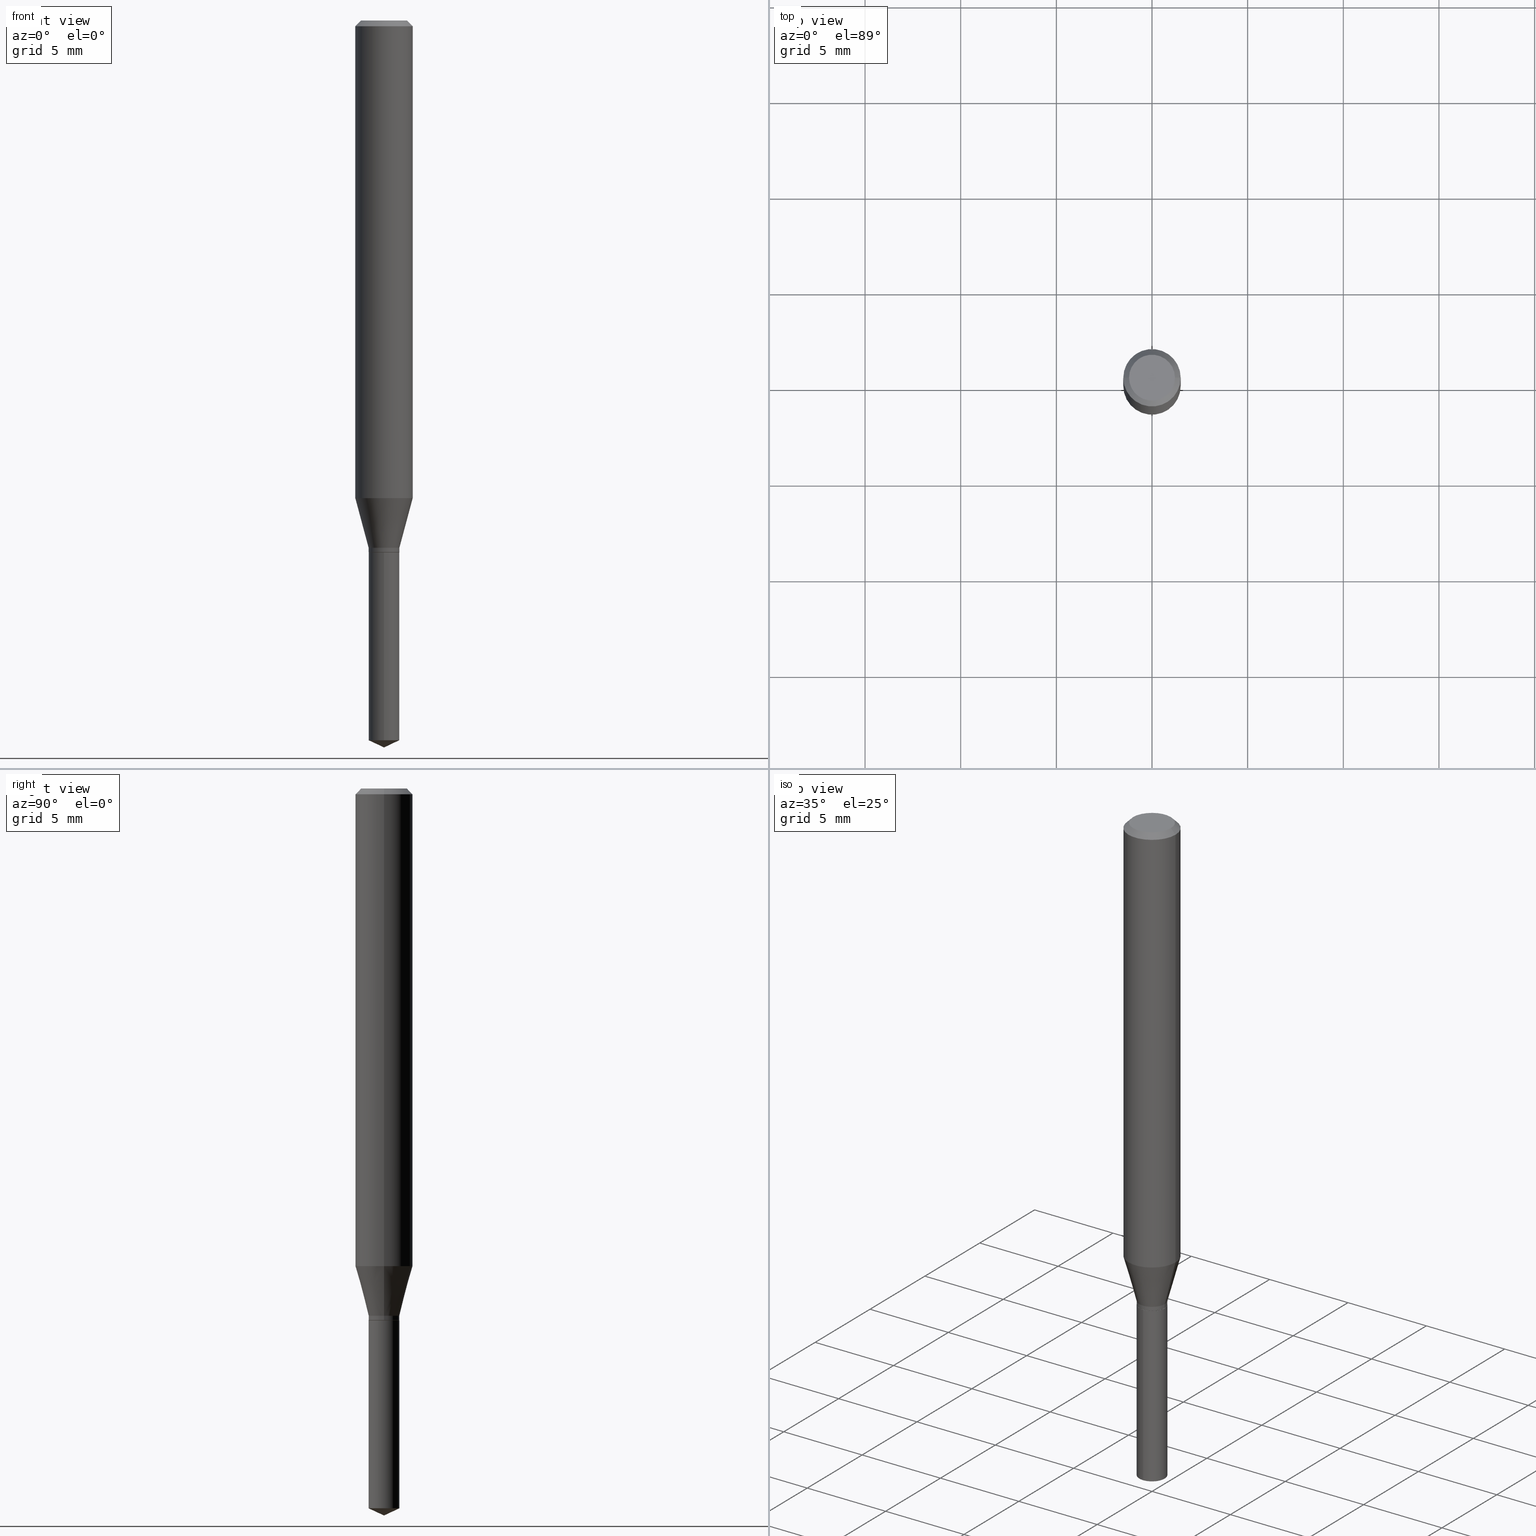
[diagram: canonical four-view strip — front | top / right | iso, engineering-drawing reading convention]
A machine part, canonical four-view strip (front | top / right | iso — engineering-drawing reading convention). The complete STEP part file that produces these views, byte-faithful:
ISO-10303-21;
HEADER;
FILE_DESCRIPTION (( 'STEP AP203' ),
    '1' );
FILE_NAME ('07554.STEP',
    '2024-04-23T22:52:33',
    ( '' ),
    ( '' ),
    'SwSTEP 2.0',
    'SolidWorks 2023',
    '' );
FILE_SCHEMA (( 'CONFIG_CONTROL_DESIGN' ));
ENDSEC;

DATA;
#1 = DIRECTION ( 'NONE',  ( -2.445468806185136597E-29, 3.491481338843145583E-15, 1.000000000000000000 ) ) ;
#2 = COORDINATED_UNIVERSAL_TIME_OFFSET ( 5, 0, .BEHIND. ) ;
#3 = CARTESIAN_POINT ( 'NONE',  ( -0.03119999999999999857, -3.597087764632560275E-15, -1.094500000000000028 ) ) ;
#4 = CARTESIAN_POINT ( 'NONE',  ( -0.05904999999999999832, -1.316979813027385650E-15, -0.01181000000000007218 ) ) ;
#5 = AXIS2_PLACEMENT_3D ( 'NONE', #169, #325, #94 ) ;
#6 = CC_DESIGN_DATE_AND_TIME_ASSIGNMENT ( #307, #345, ( #447 ) ) ;
#7 =( GEOMETRIC_REPRESENTATION_CONTEXT ( 3 ) GLOBAL_UNCERTAINTY_ASSIGNED_CONTEXT ( ( #240 ) ) GLOBAL_UNIT_ASSIGNED_CONTEXT ( ( #287, #341, #137 ) ) REPRESENTATION_CONTEXT ( 'NONE', 'WORKASPACE' ) );
#8 = SECURITY_CLASSIFICATION_LEVEL ( 'unclassified' ) ;
#9 = CARTESIAN_POINT ( 'NONE',  ( 2.676565608369632355E-29, -3.821426325363822773E-15, -1.094500000000000028 ) ) ;
#10 = DIRECTION ( 'NONE',  ( 1.000000000000000000, -6.982962677686266711E-15, 4.876185090822587894E-29 ) ) ;
#11 = ADVANCED_BREP_SHAPE_REPRESENTATION ( '07554', ( #474, #482, #246 ), #7 ) ;
#12 = EDGE_CURVE ( 'NONE', #23, #438, #337, .T. ) ;
#13 = ADVANCED_FACE ( 'NONE', ( #485 ), #237, .T. ) ;
#14 = FACE_OUTER_BOUND ( 'NONE', #111, .T. ) ;
#15 = ORIENTED_EDGE ( 'NONE', *, *, #268, .T. ) ;
#16 = FACE_OUTER_BOUND ( 'NONE', #479, .T. ) ;
#17 = DIRECTION ( 'NONE',  ( -2.445468806185136877E-29, 3.491481338843145188E-15, 1.000000000000000000 ) ) ;
#18 = ORIENTED_EDGE ( 'NONE', *, *, #65, .T. ) ;
#19 = EDGE_CURVE ( 'NONE', #312, #177, #260, .T. ) ;
#20 = EDGE_CURVE ( 'NONE', #132, #177, #216, .T. ) ;
#21 = LINE ( 'NONE', #163, #465 ) ;
#22 = ORIENTED_EDGE ( 'NONE', *, *, #20, .T. ) ;
#23 = VERTEX_POINT ( 'NONE', #3 ) ;
#24 = AXIS2_PLACEMENT_3D ( 'NONE', #87, #45, #53 ) ;
#25 = CARTESIAN_POINT ( 'NONE',  ( 0.03119999999999999857, -4.039294760907634307E-15, -1.094500000000000028 ) ) ;
#26 = ORIENTED_EDGE ( 'NONE', *, *, #378, .F. ) ;
#27 = ADVANCED_FACE ( 'NONE', ( #455 ), #223, .F. ) ;
#28 = DIRECTION ( 'NONE',  ( -2.445468806185136597E-29, 3.491481338843145583E-15, 1.000000000000000000 ) ) ;
#29 = ORIENTED_EDGE ( 'NONE', *, *, #362, .F. ) ;
#30 = DIRECTION ( 'NONE',  ( -6.982962677686265922E-15, -1.000000000000000000, 4.308908507356882401E-15 ) ) ;
#31 = ORIENTED_EDGE ( 'NONE', *, *, #462, .F. ) ;
#32 = APPROVAL_PERSON_ORGANIZATION ( #411, #352, #73 ) ;
#33 = CONICAL_SURFACE ( 'NONE', #173, 84.42940631927372408, 1.134464013796313120 ) ;
#34 = CONICAL_SURFACE ( 'NONE', #205, 0.03169999999999998513, 0.2617993877991499074 ) ;
#35 = ORIENTED_EDGE ( 'NONE', *, *, #458, .F. ) ;
#36 = DIRECTION ( 'NONE',  ( 0.000000000000000000, 0.000000000000000000, 1.000000000000000000 ) ) ;
#37 = ORIENTED_EDGE ( 'NONE', *, *, #362, .T. ) ;
#38 = CARTESIAN_POINT ( 'NONE',  ( 3.658664905062460986E-29, -5.223606628546217219E-15, -1.496099999999999985 ) ) ;
#39 = ORIENTED_EDGE ( 'NONE', *, *, #378, .T. ) ;
#40 = CALENDAR_DATE ( 2024, 23, 4 ) ;
#41 = VECTOR ( 'NONE', #89, 39.37007874015748143 ) ;
#42 = ORIENTED_EDGE ( 'NONE', *, *, #385, .F. ) ;
#43 = APPROVAL_STATUS ( 'not_yet_approved' ) ;
#44 = DIRECTION ( 'NONE',  ( 2.438088387897960049E-29, -3.491481338843145188E-15, -1.000000000000000000 ) ) ;
#45 = DIRECTION ( 'NONE',  ( -2.445468806185136597E-29, 3.491481338843145583E-15, 1.000000000000000000 ) ) ;
#46 = COORDINATED_UNIVERSAL_TIME_OFFSET ( 5, 0, .BEHIND. ) ;
#47 = LINE ( 'NONE', #117, #302 ) ;
#48 = CC_DESIGN_APPROVAL ( #99, ( #301 ) ) ;
#49 = AXIS2_PLACEMENT_3D ( 'NONE', #437, #97, #245 ) ;
#50 = DIRECTION ( 'NONE',  ( -6.982962677686266711E-15, -1.000000000000000000, 3.520397390770479508E-15 ) ) ;
#51 = ADVANCED_FACE ( 'NONE', ( #375 ), #448, .T. ) ;
#52 = DIRECTION ( 'NONE',  ( -6.982962677686265922E-15, -1.000000000000000000, 0.000000000000000000 ) ) ;
#53 = DIRECTION ( 'NONE',  ( 1.000000000000000000, -6.982962677686266711E-15, 0.000000000000000000 ) ) ;
#54 = CIRCLE ( 'NONE', #63, 0.03119999999999999857 ) ;
#55 = EDGE_CURVE ( 'NONE', #443, #231, #348, .T. ) ;
#56 = DIRECTION ( 'NONE',  ( -2.445468806185136597E-29, 3.491481338843145583E-15, 1.000000000000000000 ) ) ;
#57 = ORIENTED_EDGE ( 'NONE', *, *, #463, .T. ) ;
#58 = CARTESIAN_POINT ( 'NONE',  ( 2.675342873966538993E-29, -3.819680584694400481E-15, -1.093999999999999861 ) ) ;
#59 = ORIENTED_EDGE ( 'NONE', *, *, #377, .F. ) ;
#60 = CARTESIAN_POINT ( 'NONE',  ( 2.888098660104664204E-31, -4.123439461173780263E-17, -0.01181000000000007218 ) ) ;
#61 = ORIENTED_EDGE ( 'NONE', *, *, #268, .F. ) ;
#62 = AXIS2_PLACEMENT_3D ( 'NONE', #58, #391, #210 ) ;
#63 = AXIS2_PLACEMENT_3D ( 'NONE', #196, #383, #419 ) ;
#64 = CARTESIAN_POINT ( 'NONE',  ( -0.03169999999999998513, -3.578726871433655542E-15, -1.093999999999999861 ) ) ;
#65 = EDGE_CURVE ( 'NONE', #211, #23, #417, .T. ) ;
#66 = CARTESIAN_POINT ( 'NONE',  ( -2.213599168826184261E-16, -0.03170000000000517543, -1.481318047236486413 ) ) ;
#67 = LENGTH_MEASURE_WITH_UNIT ( LENGTH_MEASURE( 0.02539999999999999897 ), #452 );
#68 = ORIENTED_EDGE ( 'NONE', *, *, #306, .F. ) ;
#69 = CIRCLE ( 'NONE', #373, 0.05904999999999999832 ) ;
#70 = APPLICATION_PROTOCOL_DEFINITION ( 'international standard', 'config_control_design', 1994, #243 ) ;
#71 = LOCAL_TIME ( 18, 52, 33.00000000000000000, #379 ) ;
#72 = VERTEX_POINT ( 'NONE', #106 ) ;
#73 = APPROVAL_ROLE ( '' ) ;
#74 = DIRECTION ( 'NONE',  ( -2.445468806185136597E-29, 3.491481338843145583E-15, 1.000000000000000000 ) ) ;
#75 = DIRECTION ( 'NONE',  ( -2.445468806185136597E-29, 3.491481338843145583E-15, 1.000000000000000000 ) ) ;
#76 = ORIENTED_EDGE ( 'NONE', *, *, #20, .F. ) ;
#77 = PERSON_AND_ORGANIZATION_ROLE ( 'design_owner' ) ;
#78 = ORIENTED_EDGE ( 'NONE', *, *, #306, .T. ) ;
#79 = PERSON_AND_ORGANIZATION ( #332, #230 ) ;
#80 = DIRECTION ( 'NONE',  ( -2.445470214571802116E-29, 3.491479321953280158E-15, 1.000000000000000000 ) ) ;
#81 = CALENDAR_DATE ( 2024, 23, 4 ) ;
#82 = FACE_OUTER_BOUND ( 'NONE', #247, .T. ) ;
#83 = EDGE_CURVE ( 'NONE', #359, #179, #440, .T. ) ;
#84 = DIRECTION ( 'NONE',  ( -2.445470214571802116E-29, 3.491479321953280158E-15, 1.000000000000000000 ) ) ;
#85 = CARTESIAN_POINT ( 'NONE',  ( 3.622517621345287760E-29, -5.171993538648362577E-15, -1.481318047236486413 ) ) ;
#86 = ADVANCED_FACE ( 'NONE', ( #14 ), #471, .T. ) ;
#87 = CARTESIAN_POINT ( 'NONE',  ( 2.888098660104664204E-31, -4.123439461173780263E-17, -0.01181000000000007218 ) ) ;
#88 = ORIENTED_EDGE ( 'NONE', *, *, #477, .T. ) ;
#89 = DIRECTION ( 'NONE',  ( -2.445468806185136877E-29, 3.491481338843145188E-15, 1.000000000000000000 ) ) ;
#90 = APPROVAL_PERSON_ORGANIZATION ( #112, #99, #225 ) ;
#91 = LOCAL_TIME ( 18, 52, 33.00000000000000000, #459 ) ;
#92 = AXIS2_PLACEMENT_3D ( 'NONE', #424, #84, #229 ) ;
#93 = AXIS2_PLACEMENT_3D ( 'NONE', #358, #162, #315 ) ;
#94 = DIRECTION ( 'NONE',  ( 1.000000000000000000, -6.982962677686267499E-15, 0.000000000000000000 ) ) ;
#95 = ORIENTED_EDGE ( 'NONE', *, *, #232, .T. ) ;
#96 = LINE ( 'NONE', #25, #256 ) ;
#97 = DIRECTION ( 'NONE',  ( -2.445468806185136597E-29, 3.491481338843145583E-15, 1.000000000000000000 ) ) ;
#98 = ORIENTED_EDGE ( 'NONE', *, *, #451, .T. ) ;
#99 = APPROVAL ( #343, 'UNSPECIFIED' ) ;
#100 = DIRECTION ( 'NONE',  ( -2.445470214571802116E-29, 3.491479321953280158E-15, 1.000000000000000000 ) ) ;
#101 = ORIENTED_EDGE ( 'NONE', *, *, #351, .T. ) ;
#102 = LINE ( 'NONE', #139, #323 ) ;
#103 = DIRECTION ( 'NONE',  ( -2.445470214571802116E-29, 3.491479321953280158E-15, 1.000000000000000000 ) ) ;
#104 = CARTESIAN_POINT ( 'NONE',  ( 2.676565608369632355E-29, -3.821426325363822773E-15, -1.094500000000000028 ) ) ;
#105 = ORIENTED_EDGE ( 'NONE', *, *, #252, .F. ) ;
#106 = CARTESIAN_POINT ( 'NONE',  ( 0.03169999999999998513, -4.041040501577055811E-15, -1.093999999999999861 ) ) ;
#107 = DIRECTION ( 'NONE',  ( 0.2588190451025211836, 1.565188264969622559E-15, 0.9659258262890679791 ) ) ;
#108 = EDGE_CURVE ( 'NONE', #177, #333, #228, .T. ) ;
#109 = DIRECTION ( 'NONE',  ( 1.000000000000000000, -6.982962677686267499E-15, 0.000000000000000000 ) ) ;
#110 = CALENDAR_DATE ( 2024, 23, 4 ) ;
#111 = EDGE_LOOP ( 'NONE', ( #397, #95, #168, #262 ) ) ;
#112 = PERSON_AND_ORGANIZATION ( #332, #230 ) ;
#113 = CARTESIAN_POINT ( 'NONE',  ( -0.03169999999999998513, -3.578726871433655542E-15, -1.084999999999999964 ) ) ;
#114 = CIRCLE ( 'NONE', #92, 0.03169999999999999901 ) ;
#115 = EDGE_CURVE ( 'NONE', #316, #333, #461, .T. ) ;
#116 = PERSON_AND_ORGANIZATION ( #332, #230 ) ;
#117 = CARTESIAN_POINT ( 'NONE',  ( -0.03169999999999998513, -3.563015205408861221E-15, -1.084999999999999964 ) ) ;
#118 = ADVANCED_FACE ( 'NONE', ( #16 ), #158, .T. ) ;
#119 = DIRECTION ( 'NONE',  ( -2.445468806185136877E-29, 3.491481338843145188E-15, 1.000000000000000000 ) ) ;
#120 = DIRECTION ( 'NONE',  ( -2.445470214571802396E-29, 3.491479321953280158E-15, 1.000000000000000000 ) ) ;
#121 = CONICAL_SURFACE ( 'NONE', #347, 0.03119999999999999857, 0.7853981633972647591 ) ;
#122 = VECTOR ( 'NONE', #182, 39.37007874015748143 ) ;
#123 = DIRECTION ( 'NONE',  ( -0.2588190451025211836, 5.211531920934547886E-15, 0.9659258262890679791 ) ) ;
#124 = CYLINDRICAL_SURFACE ( 'NONE', #93, 0.05905000000000006077 ) ;
#125 = FACE_OUTER_BOUND ( 'NONE', #203, .T. ) ;
#126 = AXIS2_PLACEMENT_3D ( 'NONE', #140, #103, #253 ) ;
#127 = AXIS2_PLACEMENT_3D ( 'NONE', #469, #28, #328 ) ;
#128 = CARTESIAN_POINT ( 'NONE',  ( 0.05904999999999999832, -4.463468013801466955E-16, -0.01181000000000007218 ) ) ;
#129 = EDGE_LOOP ( 'NONE', ( #286, #441, #370, #445 ) ) ;
#130 = LINE ( 'NONE', #128, #340 ) ;
#131 = CC_DESIGN_DATE_AND_TIME_ASSIGNMENT ( #171, #189, ( #249 ) ) ;
#132 = VERTEX_POINT ( 'NONE', #192 ) ;
#133 = LINE ( 'NONE', #430, #387 ) ;
#134 = ORIENTED_EDGE ( 'NONE', *, *, #232, .F. ) ;
#135 = VECTOR ( 'NONE', #298, 39.37007874015748143 ) ;
#136 = LINE ( 'NONE', #38, #450 ) ;
#137 =( NAMED_UNIT ( * ) SI_UNIT ( $, .STERADIAN. ) SOLID_ANGLE_UNIT ( ) );
#138 = CARTESIAN_POINT ( 'NONE',  ( -0.05904999999999999832, 3.711095515056362547E-16, -0.01181000000000007218 ) ) ;
#139 = CARTESIAN_POINT ( 'NONE',  ( 3.658668015054778287E-29, -5.223602213574301462E-15, -1.496099999999999985 ) ) ;
#140 = CARTESIAN_POINT ( 'NONE',  ( 2.676565608369631794E-29, -3.821426325363822773E-15, -1.094499999999999806 ) ) ;
#141 = AXIS2_PLACEMENT_3D ( 'NONE', #104, #409, #109 ) ;
#142 = EDGE_LOOP ( 'NONE', ( #281, #339, #159, #251 ) ) ;
#143 = PERSON_AND_ORGANIZATION ( #332, #230 ) ;
#144 = ORIENTED_EDGE ( 'NONE', *, *, #261, .T. ) ;
#145 = CC_DESIGN_PERSON_AND_ORGANIZATION_ASSIGNMENT ( #149, #303, ( #447 ) ) ;
#146 = CALENDAR_DATE ( 2024, 23, 4 ) ;
#147 = CARTESIAN_POINT ( 'NONE',  ( 0.000000000000000000, 0.000000000000000000, 0.000000000000000000 ) ) ;
#148 = AXIS2_PLACEMENT_3D ( 'NONE', #364, #278, #280 ) ;
#149 = PERSON_AND_ORGANIZATION ( #332, #230 ) ;
#150 = AXIS2_PLACEMENT_3D ( 'NONE', #265, #422, #224 ) ;
#151 = DIRECTION ( 'NONE',  ( -2.445470214571802116E-29, 3.491479321953280158E-15, 1.000000000000000000 ) ) ;
#152 = AXIS2_PLACEMENT_3D ( 'NONE', #305, #460, #10 ) ;
#153 = APPROVAL_DATE_TIME ( #418, #99 ) ;
#154 = DIRECTION ( 'NONE',  ( 1.000000000000000000, -6.982962677686265922E-15, 4.876176775795935793E-29 ) ) ;
#155 = DIRECTION ( 'NONE',  ( -2.445468806185136597E-29, 3.491481338843145583E-15, 1.000000000000000000 ) ) ;
#156 = APPLICATION_CONTEXT ( 'configuration controlled 3d designs of mechanical parts and assemblies' ) ;
#157 = DIRECTION ( 'NONE',  ( 1.000000000000000000, -6.982962677686272233E-15, 0.000000000000000000 ) ) ;
#158 = CONICAL_SURFACE ( 'NONE', #150, 0.05904999999999999832, 0.7853981633974452814 ) ;
#159 = ORIENTED_EDGE ( 'NONE', *, *, #404, .T. ) ;
#160 = DIRECTION ( 'NONE',  ( -2.445470214571802116E-29, 3.491479321953280158E-15, 1.000000000000000000 ) ) ;
#161 = APPROVAL ( #43, 'UNSPECIFIED' ) ;
#162 = DIRECTION ( 'NONE',  ( -2.445468806185136597E-29, 3.491481338843145583E-15, 1.000000000000000000 ) ) ;
#163 = CARTESIAN_POINT ( 'NONE',  ( -2.213599168826278678E-16, -0.03170000000000382234, -1.094499999999999806 ) ) ;
#164 = CIRCLE ( 'NONE', #127, 0.05905000000000011628 ) ;
#165 = ORIENTED_EDGE ( 'NONE', *, *, #83, .F. ) ;
#166 = AXIS2_PLACEMENT_3D ( 'NONE', #480, #338, #258 ) ;
#167 = FACE_OUTER_BOUND ( 'NONE', #129, .T. ) ;
#168 = ORIENTED_EDGE ( 'NONE', *, *, #393, .F. ) ;
#169 = CARTESIAN_POINT ( 'NONE',  ( 2.676565608369632355E-29, -3.821426325363822773E-15, -1.094500000000000028 ) ) ;
#170 = ORIENTED_EDGE ( 'NONE', *, *, #65, .F. ) ;
#171 = DATE_AND_TIME ( #110, #472 ) ;
#172 = ORIENTED_EDGE ( 'NONE', *, *, #404, .F. ) ;
#173 = AXIS2_PLACEMENT_3D ( 'NONE', #226, #151, #50 ) ;
#174 = DIRECTION ( 'NONE',  ( -6.982962677686265922E-15, -1.000000000000000000, 4.308908507356882401E-15 ) ) ;
#175 = EDGE_LOOP ( 'NONE', ( #376, #279, #105 ) ) ;
#176 = ADVANCED_FACE ( 'NONE', ( #346 ), #386, .F. ) ;
#177 = VERTEX_POINT ( 'NONE', #4 ) ;
#178 = CARTESIAN_POINT ( 'NONE',  ( -2.213599168826278678E-16, -0.03170000000000382234, -1.094499999999999806 ) ) ;
#179 = VERTEX_POINT ( 'NONE', #113 ) ;
#180 = APPROVAL_DATE_TIME ( #222, #352 ) ;
#181 = AXIS2_PLACEMENT_3D ( 'NONE', #309, #270, #154 ) ;
#182 = DIRECTION ( 'NONE',  ( -0.7071067811865453523, 2.468850131082234184E-15, -0.7071067811865496822 ) ) ;
#183 = EDGE_CURVE ( 'NONE', #23, #211, #54, .T. ) ;
#184 = APPROVAL_ROLE ( '' ) ;
#185 = ORIENTED_EDGE ( 'NONE', *, *, #483, .T. ) ;
#186 = CARTESIAN_POINT ( 'NONE',  ( 2.653333654710873051E-29, -3.788257252644812628E-15, -1.084999999999999964 ) ) ;
#187 = ADVANCED_FACE ( 'NONE', ( #353 ), #274, .T. ) ;
#188 = CIRCLE ( 'NONE', #277, 0.03169999999999999901 ) ;
#189 = DATE_TIME_ROLE ( 'creation_date' ) ;
#190 = CARTESIAN_POINT ( 'NONE',  ( 2.653333654710873051E-29, -3.788257252644812628E-15, -1.084999999999999964 ) ) ;
#191 = CIRCLE ( 'NONE', #152, 0.04724000000000000421 ) ;
#192 = CARTESIAN_POINT ( 'NONE',  ( -0.04724000000000000421, 3.504923541997677355E-16, -3.380025165670481712E-19 ) ) ;
#193 = ADVANCED_FACE ( 'NONE', ( #233 ), #467, .T. ) ;
#194 = LINE ( 'NONE', #429, #363 ) ;
#195 = EDGE_CURVE ( 'NONE', #400, #372, #264, .T. ) ;
#196 = CARTESIAN_POINT ( 'NONE',  ( 2.676565608369632355E-29, -3.821426325363822773E-15, -1.094500000000000028 ) ) ;
#197 = AXIS2_PLACEMENT_3D ( 'NONE', #413, #74, #218 ) ;
#198 = FACE_OUTER_BOUND ( 'NONE', #368, .T. ) ;
#199 = ORIENTED_EDGE ( 'NONE', *, *, #261, .F. ) ;
#200 = CARTESIAN_POINT ( 'NONE',  ( 3.658667988020872822E-29, -5.223602213574301462E-15, -1.496099999999999985 ) ) ;
#201 = EDGE_LOOP ( 'NONE', ( #98, #15 ) ) ;
#202 = ADVANCED_FACE ( 'NONE', ( #82 ), #33, .T. ) ;
#203 = EDGE_LOOP ( 'NONE', ( #26, #101, #380, #29 ) ) ;
#204 = DIRECTION ( 'NONE',  ( 2.445468806185136597E-29, -3.491481338843145583E-15, -1.000000000000000000 ) ) ;
#205 = AXIS2_PLACEMENT_3D ( 'NONE', #190, #267, #350 ) ;
#206 = ORIENTED_EDGE ( 'NONE', *, *, #393, .T. ) ;
#207 = AXIS2_PLACEMENT_3D ( 'NONE', #85, #160, #52 ) ;
#208 = CARTESIAN_POINT ( 'NONE',  ( 2.252420472359879902E-16, 0.03169999999999482954, -1.481318047236486413 ) ) ;
#209 = ORIENTED_EDGE ( 'NONE', *, *, #444, .F. ) ;
#210 = DIRECTION ( 'NONE',  ( 1.000000000000000000, -6.982962677686272233E-15, 0.000000000000000000 ) ) ;
#211 = VERTEX_POINT ( 'NONE', #311 ) ;
#212 = CARTESIAN_POINT ( 'NONE',  ( -9.261968845786000133E-28, 1.322362114038720264E-13, 37.87397874015748300 ) ) ;
#213 = AXIS2_PLACEMENT_3D ( 'NONE', #60, #204, #250 ) ;
#214 = CC_DESIGN_APPROVAL ( #161, ( #447 ) ) ;
#215 = PERSON_AND_ORGANIZATION ( #332, #230 ) ;
#216 = LINE ( 'NONE', #138, #122 ) ;
#217 = CARTESIAN_POINT ( 'NONE',  ( 2.676565608369631794E-29, -3.821426325363822773E-15, -1.094499999999999806 ) ) ;
#218 = DIRECTION ( 'NONE',  ( 1.000000000000000000, -6.982962677686272233E-15, 0.000000000000000000 ) ) ;
#219 = CC_DESIGN_PERSON_AND_ORGANIZATION_ASSIGNMENT ( #143, #297, ( #249 ) ) ;
#220 = APPROVAL_STATUS ( 'not_yet_approved' ) ;
#221 = ORIENTED_EDGE ( 'NONE', *, *, #108, .T. ) ;
#222 = DATE_AND_TIME ( #40, #71 ) ;
#223 = PLANE ( 'NONE',  #365 ) ;
#224 = DIRECTION ( 'NONE',  ( -1.000000000000000000, 6.982962677686266711E-15, 0.000000000000000000 ) ) ;
#225 = APPROVAL_ROLE ( '' ) ;
#226 = CARTESIAN_POINT ( 'NONE',  ( -9.261968845786000133E-28, 1.322362114038720264E-13, 37.87397874015748300 ) ) ;
#227 = LOCAL_TIME ( 18, 52, 33.00000000000000000, #46 ) ;
#228 = CIRCLE ( 'NONE', #24, 0.05904999999999999832 ) ;
#229 = DIRECTION ( 'NONE',  ( -6.982962677686265922E-15, -1.000000000000000000, 0.000000000000000000 ) ) ;
#230 = ORGANIZATION ( 'UNSPECIFIED', 'UNSPECIFIED', '' ) ;
#231 = VERTEX_POINT ( 'NONE', #390 ) ;
#232 = EDGE_CURVE ( 'NONE', #179, #312, #47, .T. ) ;
#233 = FACE_OUTER_BOUND ( 'NONE', #361, .T. ) ;
#234 = CC_DESIGN_PERSON_AND_ORGANIZATION_ASSIGNMENT ( #349, #384, ( #301 ) ) ;
#235 = FACE_OUTER_BOUND ( 'NONE', #416, .T. ) ;
#236 = FACE_OUTER_BOUND ( 'NONE', #392, .T. ) ;
#237 = CONICAL_SURFACE ( 'NONE', #321, 84.42940631927372408, 1.134464013796313120 ) ;
#238 = EDGE_LOOP ( 'NONE', ( #78, #39, #165, #42 ) ) ;
#239 = CONICAL_SURFACE ( 'NONE', #5, 0.03119999999999999857, 0.7853981633972647591 ) ;
#240 = UNCERTAINTY_MEASURE_WITH_UNIT (LENGTH_MEASURE( 1.000000000000000082E-05 ), #287, 'distance_accuracy_value', 'NONE');
#241 = DIRECTION ( 'NONE',  ( 1.000000000000000000, -6.982962677686272233E-15, 0.000000000000000000 ) ) ;
#242 = ORIENTED_EDGE ( 'NONE', *, *, #458, .T. ) ;
#243 = APPLICATION_CONTEXT ( 'configuration controlled 3d designs of mechanical parts and assemblies' ) ;
#244 = CARTESIAN_POINT ( 'NONE',  ( 2.676565608369631794E-29, -3.821426325363822773E-15, -1.094499999999999806 ) ) ;
#245 = DIRECTION ( 'NONE',  ( 1.000000000000000000, -6.982962677686267499E-15, 4.876176775795936353E-29 ) ) ;
#246 = AXIS2_PLACEMENT_3D ( 'NONE', #407, #36, #490 ) ;
#247 = EDGE_LOOP ( 'NONE', ( #209, #57, #342 ) ) ;
#248 = VECTOR ( 'NONE', #119, 39.37007874015748143 ) ;
#249 = PRODUCT_DEFINITION ( 'UNKNOWN', '', #301, #310 ) ;
#250 = DIRECTION ( 'NONE',  ( -1.000000000000000000, 6.982962677686266711E-15, 0.000000000000000000 ) ) ;
#251 = ORIENTED_EDGE ( 'NONE', *, *, #351, .F. ) ;
#252 = EDGE_CURVE ( 'NONE', #372, #400, #114, .T. ) ;
#253 = DIRECTION ( 'NONE',  ( -6.982962677686265922E-15, -1.000000000000000000, 4.308908507356882401E-15 ) ) ;
#254 = DIRECTION ( 'NONE',  ( -6.982962677686266711E-15, -1.000000000000000000, 3.520397390770479508E-15 ) ) ;
#255 = LOCAL_TIME ( 18, 52, 33.00000000000000000, #2 ) ;
#256 = VECTOR ( 'NONE', #369, 39.37007874015748854 ) ;
#257 = VERTEX_POINT ( 'NONE', #275 ) ;
#258 = DIRECTION ( 'NONE',  ( 1.000000000000000000, -6.982962677686266711E-15, 4.876185090822587894E-29 ) ) ;
#259 = DIMENSIONAL_EXPONENTS ( 1.000000000000000000, 0.000000000000000000, 0.000000000000000000, 0.000000000000000000, 0.000000000000000000, 0.000000000000000000, 0.000000000000000000 ) ;
#260 = LINE ( 'NONE', #481, #135 ) ;
#261 = EDGE_CURVE ( 'NONE', #400, #231, #194, .T. ) ;
#262 = ORIENTED_EDGE ( 'NONE', *, *, #483, .F. ) ;
#263 = CALENDAR_DATE ( 2024, 23, 4 ) ;
#264 = CIRCLE ( 'NONE', #207, 0.03169999999999999901 ) ;
#265 = CARTESIAN_POINT ( 'NONE',  ( 2.888098660104664204E-31, -4.123439461173780263E-17, -0.01181000000000007218 ) ) ;
#266 = PERSON_AND_ORGANIZATION_ROLE ( 'creator' ) ;
#267 = DIRECTION ( 'NONE',  ( -2.445468806185136597E-29, 3.491481338843145583E-15, 1.000000000000000000 ) ) ;
#268 = EDGE_CURVE ( 'NONE', #257, #132, #191, .T. ) ;
#269 = PRODUCT ( '07554', '07554', '', ( #291 ) ) ;
#270 = DIRECTION ( 'NONE',  ( -2.438088387897960049E-29, 3.491481338843145188E-15, 1.000000000000000000 ) ) ;
#271 = VECTOR ( 'NONE', #107, 39.37007874015748854 ) ;
#272 = APPROVAL_PERSON_ORGANIZATION ( #116, #161, #184 ) ;
#273 = CLOSED_SHELL ( 'NONE', ( #406, #13, #202, #187, #296 ) ) ;
#274 = CYLINDRICAL_SURFACE ( 'NONE', #426, 0.03169999999999999901 ) ;
#275 = CARTESIAN_POINT ( 'NONE',  ( 0.04724000000000000421, -3.852183633974369345E-16, -3.380025165621689721E-19 ) ) ;
#276 = DIRECTION ( 'NONE',  ( 1.000000000000000000, -6.982962677686267499E-15, 0.000000000000000000 ) ) ;
#277 = AXIS2_PLACEMENT_3D ( 'NONE', #217, #442, #174 ) ;
#278 = DIRECTION ( 'NONE',  ( 2.445470214571801836E-29, -3.491479321953280158E-15, -1.000000000000000000 ) ) ;
#279 = ORIENTED_EDGE ( 'NONE', *, *, #444, .T. ) ;
#280 = DIRECTION ( 'NONE',  ( 6.982962677686265922E-15, 1.000000000000000000, -3.491479321953280158E-15 ) ) ;
#281 = ORIENTED_EDGE ( 'NONE', *, *, #12, .F. ) ;
#282 = ADVANCED_FACE ( 'NONE', ( #235 ), #34, .T. ) ;
#283 = CYLINDRICAL_SURFACE ( 'NONE', #49, 0.03169999999999998513 ) ;
#284 = ORIENTED_EDGE ( 'NONE', *, *, #19, .T. ) ;
#285 = FACE_OUTER_BOUND ( 'NONE', #300, .T. ) ;
#286 = ORIENTED_EDGE ( 'NONE', *, *, #19, .F. ) ;
#287 =( CONVERSION_BASED_UNIT ( 'INCH', #67 ) LENGTH_UNIT ( ) NAMED_UNIT ( #259 ) );
#288 = ORIENTED_EDGE ( 'NONE', *, *, #252, .T. ) ;
#289 = DIRECTION ( 'NONE',  ( 1.000000000000000000, -6.982962677686267499E-15, 4.876176775795936353E-29 ) ) ;
#290 = ADVANCED_FACE ( 'NONE', ( #389 ), #121, .T. ) ;
#291 = MECHANICAL_CONTEXT ( 'NONE', #243, 'mechanical' ) ;
#292 = ORIENTED_EDGE ( 'NONE', *, *, #327, .T. ) ;
#293 = CONICAL_SURFACE ( 'NONE', #213, 0.05904999999999999832, 0.7853981633974452814 ) ;
#294 = DIRECTION ( 'NONE',  ( -2.445468806185136597E-29, 3.491481338843145583E-15, 1.000000000000000000 ) ) ;
#295 = DIRECTION ( 'NONE',  ( -1.000000000000000000, 6.982962677686265922E-15, -4.876176775795935793E-29 ) ) ;
#296 = ADVANCED_FACE ( 'NONE', ( #236 ), #401, .F. ) ;
#297 = PERSON_AND_ORGANIZATION_ROLE ( 'creator' ) ;
#298 = DIRECTION ( 'NONE',  ( -2.445468806185136877E-29, 3.491481338843145188E-15, 1.000000000000000000 ) ) ;
#299 = APPROVAL_DATE_TIME ( #420, #161 ) ;
#300 = EDGE_LOOP ( 'NONE', ( #18, #322, #68, #172 ) ) ;
#301 = PRODUCT_DEFINITION_FORMATION_WITH_SPECIFIED_SOURCE ( 'ANY', '', #269, .NOT_KNOWN. ) ;
#302 = VECTOR ( 'NONE', #123, 39.37007874015748854 ) ;
#303 = PERSON_AND_ORGANIZATION_ROLE ( 'classification_officer' ) ;
#304 = AXIS2_PLACEMENT_3D ( 'NONE', #473, #56, #394 ) ;
#305 = CARTESIAN_POINT ( 'NONE',  ( 8.265746106709734507E-48, -1.180129479067563789E-33, -3.380025165646692144E-19 ) ) ;
#306 = EDGE_CURVE ( 'NONE', #72, #438, #431, .T. ) ;
#307 = DATE_AND_TIME ( #263, #227 ) ;
#308 = DIRECTION ( 'NONE',  ( -2.445468806185136597E-29, 3.491481338843145583E-15, 1.000000000000000000 ) ) ;
#309 = CARTESIAN_POINT ( 'NONE',  ( -6.694458787716881220E-30, -8.613105218097054623E-15, -1.094500000000000028 ) ) ;
#310 = DESIGN_CONTEXT ( 'detailed design', #156, 'design' ) ;
#311 = CARTESIAN_POINT ( 'NONE',  ( 0.03119999999999999857, -4.039294760907634307E-15, -1.094500000000000028 ) ) ;
#312 = VERTEX_POINT ( 'NONE', #313 ) ;
#313 = CARTESIAN_POINT ( 'NONE',  ( -0.05905000000000011628, -3.012300716909374642E-15, -0.9829284104129908384 ) ) ;
#314 = ADVANCED_FACE ( 'NONE', ( #285 ), #239, .T. ) ;
#315 = DIRECTION ( 'NONE',  ( 1.000000000000000000, -6.982962677686266711E-15, 4.876176775795935793E-29 ) ) ;
#316 = VERTEX_POINT ( 'NONE', #434 ) ;
#317 = PRODUCT_RELATED_PRODUCT_CATEGORY ( 'detail', '', ( #269 ) ) ;
#318 = EDGE_LOOP ( 'NONE', ( #170, #326 ) ) ;
#319 = CIRCLE ( 'NONE', #486, 0.05905000000000011628 ) ;
#320 = DIRECTION ( 'NONE',  ( -2.445470214571802396E-29, 3.491479321953280158E-15, 1.000000000000000000 ) ) ;
#321 = AXIS2_PLACEMENT_3D ( 'NONE', #212, #488, #254 ) ;
#322 = ORIENTED_EDGE ( 'NONE', *, *, #12, .T. ) ;
#323 = VECTOR ( 'NONE', #415, 39.37007874015748854 ) ;
#324 = PRODUCT_DEFINITION_SHAPE ( 'NONE', 'NONE',  #249 ) ;
#325 = DIRECTION ( 'NONE',  ( -2.445468806185136597E-29, 3.491481338843145583E-15, 1.000000000000000000 ) ) ;
#326 = ORIENTED_EDGE ( 'NONE', *, *, #183, .F. ) ;
#327 = EDGE_CURVE ( 'NONE', #372, #443, #21, .T. ) ;
#328 = DIRECTION ( 'NONE',  ( 1.000000000000000000, -6.982962677686266711E-15, 0.000000000000000000 ) ) ;
#329 = CC_DESIGN_PERSON_AND_ORGANIZATION_ASSIGNMENT ( #79, #266, ( #301 ) ) ;
#330 = ORIENTED_EDGE ( 'NONE', *, *, #55, .F. ) ;
#331 = CARTESIAN_POINT ( 'NONE',  ( 2.888098660104664204E-31, -4.123439461173780263E-17, -0.01181000000000007218 ) ) ;
#332 = PERSON ( 'UNSPECIFIED', 'UNSPECIFIED', 'UNSPECIFIED', ('UNSPECIFIED'), ('UNSPECIFIED'), ('UNSPECIFIED') ) ;
#333 = VERTEX_POINT ( 'NONE', #478 ) ;
#334 = DIRECTION ( 'NONE',  ( -6.328713451373366223E-15, -0.9063077870366479383, 0.4226182617407036046 ) ) ;
#335 = DIRECTION ( 'NONE',  ( -0.7071067811864176766, 7.493145998869883999E-15, 0.7071067811866772468 ) ) ;
#336 = APPLICATION_PROTOCOL_DEFINITION ( 'international standard', 'config_control_design', 1994, #156 ) ;
#337 = LINE ( 'NONE', #405, #466 ) ;
#338 = DIRECTION ( 'NONE',  ( -2.445468806185136597E-29, 3.491481338843145583E-15, 1.000000000000000000 ) ) ;
#339 = ORIENTED_EDGE ( 'NONE', *, *, #183, .T. ) ;
#340 = VECTOR ( 'NONE', #436, 39.37007874015748143 ) ;
#341 =( NAMED_UNIT ( * ) PLANE_ANGLE_UNIT ( ) SI_UNIT ( $, .RADIAN. ) );
#342 = ORIENTED_EDGE ( 'NONE', *, *, #195, .F. ) ;
#343 = APPROVAL_STATUS ( 'not_yet_approved' ) ;
#344 = ORIENTED_EDGE ( 'NONE', *, *, #327, .F. ) ;
#345 = DATE_TIME_ROLE ( 'classification_date' ) ;
#346 = FACE_OUTER_BOUND ( 'NONE', #318, .T. ) ;
#347 = AXIS2_PLACEMENT_3D ( 'NONE', #9, #354, #276 ) ;
#348 = CIRCLE ( 'NONE', #126, 0.03169999999999999901 ) ;
#349 = PERSON_AND_ORGANIZATION ( #332, #230 ) ;
#350 = DIRECTION ( 'NONE',  ( 1.000000000000000000, -6.982962677686272233E-15, 0.000000000000000000 ) ) ;
#351 = EDGE_CURVE ( 'NONE', #438, #72, #371, .T. ) ;
#352 = APPROVAL ( #220, 'UNSPECIFIED' ) ;
#353 = FACE_OUTER_BOUND ( 'NONE', #414, .T. ) ;
#354 = DIRECTION ( 'NONE',  ( -2.445468806185136597E-29, 3.491481338843145583E-15, 1.000000000000000000 ) ) ;
#355 = VERTEX_POINT ( 'NONE', #200 ) ;
#356 = CLOSED_SHELL ( 'NONE', ( #314, #412, #193, #86, #51, #428, #282, #423, #118, #27, #176, #290 ) ) ;
#357 = DIRECTION ( 'NONE',  ( 1.000000000000000000, -6.982962677686266711E-15, 4.876176775795935793E-29 ) ) ;
#358 = CARTESIAN_POINT ( 'NONE',  ( 0.000000000000000000, 0.000000000000000000, 0.000000000000000000 ) ) ;
#359 = VERTEX_POINT ( 'NONE', #367 ) ;
#360 = LINE ( 'NONE', #468, #41 ) ;
#361 = EDGE_LOOP ( 'NONE', ( #206, #284, #35, #453 ) ) ;
#362 = EDGE_CURVE ( 'NONE', #179, #359, #433, .T. ) ;
#363 = VECTOR ( 'NONE', #120, 39.37007874015748143 ) ;
#364 = CARTESIAN_POINT ( 'NONE',  ( 2.676565608369631794E-29, -3.821426325363822773E-15, -1.094499999999999806 ) ) ;
#365 = AXIS2_PLACEMENT_3D ( 'NONE', #382, #44, #295 ) ;
#366 = ORIENTED_EDGE ( 'NONE', *, *, #377, .T. ) ;
#367 = CARTESIAN_POINT ( 'NONE',  ( 0.03169999999999998513, -4.009617169527467169E-15, -1.084999999999999964 ) ) ;
#368 = EDGE_LOOP ( 'NONE', ( #288, #144, #330, #344 ) ) ;
#369 = DIRECTION ( 'NONE',  ( 0.7071067811864176766, -2.468850131080897064E-15, 0.7071067811866772468 ) ) ;
#370 = ORIENTED_EDGE ( 'NONE', *, *, #115, .T. ) ;
#371 = CIRCLE ( 'NONE', #398, 0.03169999999999998513 ) ;
#372 = VERTEX_POINT ( 'NONE', #66 ) ;
#373 = AXIS2_PLACEMENT_3D ( 'NONE', #331, #75, #446 ) ;
#374 = LINE ( 'NONE', #403, #271 ) ;
#375 = FACE_OUTER_BOUND ( 'NONE', #238, .T. ) ;
#376 = ORIENTED_EDGE ( 'NONE', *, *, #463, .F. ) ;
#377 = EDGE_CURVE ( 'NONE', #257, #333, #130, .T. ) ;
#378 = EDGE_CURVE ( 'NONE', #438, #179, #133, .T. ) ;
#379 = COORDINATED_UNIVERSAL_TIME_OFFSET ( 5, 0, .BEHIND. ) ;
#380 = ORIENTED_EDGE ( 'NONE', *, *, #385, .T. ) ;
#381 = DIRECTION ( 'NONE',  ( 1.000000000000000000, -6.982962677686266711E-15, 0.000000000000000000 ) ) ;
#382 = CARTESIAN_POINT ( 'NONE',  ( 4.132873053354867254E-48, -5.900647395337818946E-34, -1.690012582823346072E-19 ) ) ;
#383 = DIRECTION ( 'NONE',  ( -2.445468806185136597E-29, 3.491481338843145583E-15, 1.000000000000000000 ) ) ;
#384 = PERSON_AND_ORGANIZATION_ROLE ( 'design_supplier' ) ;
#385 = EDGE_CURVE ( 'NONE', #72, #359, #360, .T. ) ;
#386 = PLANE ( 'NONE',  #181 ) ;
#387 = VECTOR ( 'NONE', #17, 39.37007874015748143 ) ;
#388 = CARTESIAN_POINT ( 'NONE',  ( 0.05905000000000006077, -4.123439461173744764E-16, 2.879382386107503023E-30 ) ) ;
#389 = FACE_OUTER_BOUND ( 'NONE', #142, .T. ) ;
#390 = CARTESIAN_POINT ( 'NONE',  ( 2.252420472359879902E-16, 0.03169999999999617568, -1.094500000000000028 ) ) ;
#391 = DIRECTION ( 'NONE',  ( -2.445468806185136597E-29, 3.491481338843145583E-15, 1.000000000000000000 ) ) ;
#392 = EDGE_LOOP ( 'NONE', ( #435, #88 ) ) ;
#393 = EDGE_CURVE ( 'NONE', #316, #312, #164, .T. ) ;
#394 = DIRECTION ( 'NONE',  ( 1.000000000000000000, -6.982962677686272233E-15, 0.000000000000000000 ) ) ;
#395 = ORIENTED_EDGE ( 'NONE', *, *, #477, .F. ) ;
#396 = FACE_OUTER_BOUND ( 'NONE', #402, .T. ) ;
#397 = ORIENTED_EDGE ( 'NONE', *, *, #83, .T. ) ;
#398 = AXIS2_PLACEMENT_3D ( 'NONE', #439, #475, #241 ) ;
#399 = CYLINDRICAL_SURFACE ( 'NONE', #425, 0.03169999999999999901 ) ;
#400 = VERTEX_POINT ( 'NONE', #208 ) ;
#401 = PLANE ( 'NONE',  #148 ) ;
#402 = EDGE_LOOP ( 'NONE', ( #61, #366, #242, #76 ) ) ;
#403 = CARTESIAN_POINT ( 'NONE',  ( 0.03169999999999998513, -4.009617169527467169E-15, -1.084999999999999964 ) ) ;
#404 = EDGE_CURVE ( 'NONE', #211, #72, #96, .T. ) ;
#405 = CARTESIAN_POINT ( 'NONE',  ( -0.03119999999999999857, -3.599736991806671476E-15, -1.094500000000000028 ) ) ;
#406 = ADVANCED_FACE ( 'NONE', ( #198 ), #399, .T. ) ;
#407 = CARTESIAN_POINT ( 'NONE',  ( 0.000000000000000000, 0.000000000000000000, 0.000000000000000000 ) ) ;
#408 = CIRCLE ( 'NONE', #166, 0.04724000000000000421 ) ;
#409 = DIRECTION ( 'NONE',  ( -2.445468806185136597E-29, 3.491481338843145583E-15, 1.000000000000000000 ) ) ;
#410 = CC_DESIGN_APPROVAL ( #352, ( #249 ) ) ;
#411 = PERSON_AND_ORGANIZATION ( #332, #230 ) ;
#412 = ADVANCED_FACE ( 'NONE', ( #396 ), #293, .T. ) ;
#413 = CARTESIAN_POINT ( 'NONE',  ( 2.653333654710873051E-29, -3.788257252644812628E-15, -1.084999999999999964 ) ) ;
#414 = EDGE_LOOP ( 'NONE', ( #199, #476, #292, #395 ) ) ;
#415 = DIRECTION ( 'NONE',  ( 6.439704144417020887E-15, 0.9063077870366510469, 0.4226182617406973319 ) ) ;
#416 = EDGE_LOOP ( 'NONE', ( #134, #37, #185, #31 ) ) ;
#417 = CIRCLE ( 'NONE', #141, 0.03119999999999999857 ) ;
#418 = DATE_AND_TIME ( #81, #255 ) ;
#419 = DIRECTION ( 'NONE',  ( 1.000000000000000000, -6.982962677686267499E-15, 0.000000000000000000 ) ) ;
#420 = DATE_AND_TIME ( #146, #91 ) ;
#421 = CC_DESIGN_PERSON_AND_ORGANIZATION_ASSIGNMENT ( #215, #77, ( #269 ) ) ;
#422 = DIRECTION ( 'NONE',  ( 2.445468806185136597E-29, -3.491481338843145583E-15, -1.000000000000000000 ) ) ;
#423 = ADVANCED_FACE ( 'NONE', ( #167 ), #124, .T. ) ;
#424 = CARTESIAN_POINT ( 'NONE',  ( 3.622517621345287760E-29, -5.171993538648362577E-15, -1.481318047236486413 ) ) ;
#425 = AXIS2_PLACEMENT_3D ( 'NONE', #244, #100, #30 ) ;
#426 = AXIS2_PLACEMENT_3D ( 'NONE', #464, #80, #427 ) ;
#427 = DIRECTION ( 'NONE',  ( -6.982962677686265922E-15, -1.000000000000000000, 4.308908507356882401E-15 ) ) ;
#428 = ADVANCED_FACE ( 'NONE', ( #125 ), #283, .T. ) ;
#429 = CARTESIAN_POINT ( 'NONE',  ( 2.252420472359784746E-16, 0.03169999999999617568, -1.094500000000000028 ) ) ;
#430 = CARTESIAN_POINT ( 'NONE',  ( -0.03169999999999998513, 2.252420472359516533E-16, -1.559302423610804512E-30 ) ) ;
#431 = CIRCLE ( 'NONE', #62, 0.03169999999999998513 ) ;
#432 = AXIS2_PLACEMENT_3D ( 'NONE', #147, #1, #289 ) ;
#433 = CIRCLE ( 'NONE', #304, 0.03169999999999998513 ) ;
#434 = CARTESIAN_POINT ( 'NONE',  ( 0.05905000000000011628, -3.844220148493089449E-15, -0.9829284104129908384 ) ) ;
#435 = ORIENTED_EDGE ( 'NONE', *, *, #55, .T. ) ;
#436 = DIRECTION ( 'NONE',  ( 0.7071067811865453523, -7.319954787623248157E-15, -0.7071067811865496822 ) ) ;
#437 = CARTESIAN_POINT ( 'NONE',  ( 0.000000000000000000, 0.000000000000000000, 0.000000000000000000 ) ) ;
#438 = VERTEX_POINT ( 'NONE', #64 ) ;
#439 = CARTESIAN_POINT ( 'NONE',  ( 2.675342873966538993E-29, -3.819680584694400481E-15, -1.093999999999999861 ) ) ;
#440 = CIRCLE ( 'NONE', #197, 0.03169999999999998513 ) ;
#441 = ORIENTED_EDGE ( 'NONE', *, *, #462, .T. ) ;
#442 = DIRECTION ( 'NONE',  ( -2.445470214571802116E-29, 3.491479321953280158E-15, 1.000000000000000000 ) ) ;
#443 = VERTEX_POINT ( 'NONE', #178 ) ;
#444 = EDGE_CURVE ( 'NONE', #355, #400, #102, .T. ) ;
#445 = ORIENTED_EDGE ( 'NONE', *, *, #108, .F. ) ;
#446 = DIRECTION ( 'NONE',  ( 1.000000000000000000, -6.982962677686266711E-15, 0.000000000000000000 ) ) ;
#447 = SECURITY_CLASSIFICATION ( '', '', #8 ) ;
#448 = CYLINDRICAL_SURFACE ( 'NONE', #432, 0.03169999999999998513 ) ;
#449 = AXIS2_PLACEMENT_3D ( 'NONE', #186, #155, #157 ) ;
#450 = VECTOR ( 'NONE', #334, 39.37007874015748143 ) ;
#451 = EDGE_CURVE ( 'NONE', #132, #257, #408, .T. ) ;
#452 =( LENGTH_UNIT ( ) NAMED_UNIT ( * ) SI_UNIT ( $, .METRE. ) );
#453 = ORIENTED_EDGE ( 'NONE', *, *, #115, .F. ) ;
#454 = COORDINATED_UNIVERSAL_TIME_OFFSET ( 5, 0, .BEHIND. ) ;
#455 = FACE_OUTER_BOUND ( 'NONE', #201, .T. ) ;
#456 = SHAPE_DEFINITION_REPRESENTATION ( #324, #11 ) ;
#457 = CARTESIAN_POINT ( 'NONE',  ( 0.000000000000000000, 0.000000000000000000, 0.000000000000000000 ) ) ;
#458 = EDGE_CURVE ( 'NONE', #333, #177, #69, .T. ) ;
#459 = COORDINATED_UNIVERSAL_TIME_OFFSET ( 5, 0, .BEHIND. ) ;
#460 = DIRECTION ( 'NONE',  ( -2.445468806185136597E-29, 3.491481338843145583E-15, 1.000000000000000000 ) ) ;
#461 = LINE ( 'NONE', #388, #248 ) ;
#462 = EDGE_CURVE ( 'NONE', #312, #316, #319, .T. ) ;
#463 = EDGE_CURVE ( 'NONE', #355, #372, #136, .T. ) ;
#464 = CARTESIAN_POINT ( 'NONE',  ( 2.676565608369631794E-29, -3.821426325363822773E-15, -1.094499999999999806 ) ) ;
#465 = VECTOR ( 'NONE', #320, 39.37007874015748143 ) ;
#466 = VECTOR ( 'NONE', #335, 39.37007874015748854 ) ;
#467 = CYLINDRICAL_SURFACE ( 'NONE', #489, 0.05905000000000006077 ) ;
#468 = CARTESIAN_POINT ( 'NONE',  ( 0.03169999999999998513, -2.213599168826545658E-16, 1.545748037927311042E-30 ) ) ;
#469 = CARTESIAN_POINT ( 'NONE',  ( 2.403720766378110614E-29, -3.431876202375714135E-15, -0.9829284104129908384 ) ) ;
#470 = ORIENTED_EDGE ( 'NONE', *, *, #451, .F. ) ;
#471 = CONICAL_SURFACE ( 'NONE', #449, 0.03169999999999998513, 0.2617993877991499074 ) ;
#472 = LOCAL_TIME ( 18, 52, 33.00000000000000000, #454 ) ;
#473 = CARTESIAN_POINT ( 'NONE',  ( 2.653333654710873051E-29, -3.788257252644812628E-15, -1.084999999999999964 ) ) ;
#474 = MANIFOLD_SOLID_BREP ( 'Body-Move/Copy2[1]', #273 ) ;
#475 = DIRECTION ( 'NONE',  ( -2.445468806185136597E-29, 3.491481338843145583E-15, 1.000000000000000000 ) ) ;
#476 = ORIENTED_EDGE ( 'NONE', *, *, #195, .T. ) ;
#477 = EDGE_CURVE ( 'NONE', #231, #443, #188, .T. ) ;
#478 = CARTESIAN_POINT ( 'NONE',  ( 0.05904999999999999832, -4.535783407291118600E-16, -0.01181000000000007218 ) ) ;
#479 = EDGE_LOOP ( 'NONE', ( #59, #470, #22, #221 ) ) ;
#480 = CARTESIAN_POINT ( 'NONE',  ( 8.265746106709734507E-48, -1.180129479067563789E-33, -3.380025165646692144E-19 ) ) ;
#481 = CARTESIAN_POINT ( 'NONE',  ( -0.05905000000000006077, 4.195754854663395916E-16, -2.904631170795524694E-30 ) ) ;
#482 = MANIFOLD_SOLID_BREP ( 'Body-Move/Copy2[2]', #356 ) ;
#483 = EDGE_CURVE ( 'NONE', #359, #316, #374, .T. ) ;
#484 = CARTESIAN_POINT ( 'NONE',  ( 2.403720766378110614E-29, -3.431876202375714135E-15, -0.9829284104129908384 ) ) ;
#485 = FACE_OUTER_BOUND ( 'NONE', #175, .T. ) ;
#486 = AXIS2_PLACEMENT_3D ( 'NONE', #484, #294, #381 ) ;
#487 = CC_DESIGN_SECURITY_CLASSIFICATION ( #447, ( #301 ) ) ;
#488 = DIRECTION ( 'NONE',  ( -2.445470214571802116E-29, 3.491479321953280158E-15, 1.000000000000000000 ) ) ;
#489 = AXIS2_PLACEMENT_3D ( 'NONE', #457, #308, #357 ) ;
#490 = DIRECTION ( 'NONE',  ( 1.000000000000000000, 0.000000000000000000, 0.000000000000000000 ) ) ;
ENDSEC;
END-ISO-10303-21;
